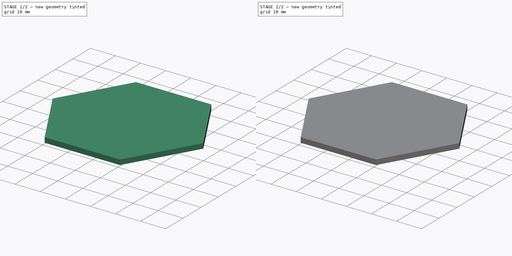
[diagram: build sequence overview — one tinted view per stage of 2, left to right]
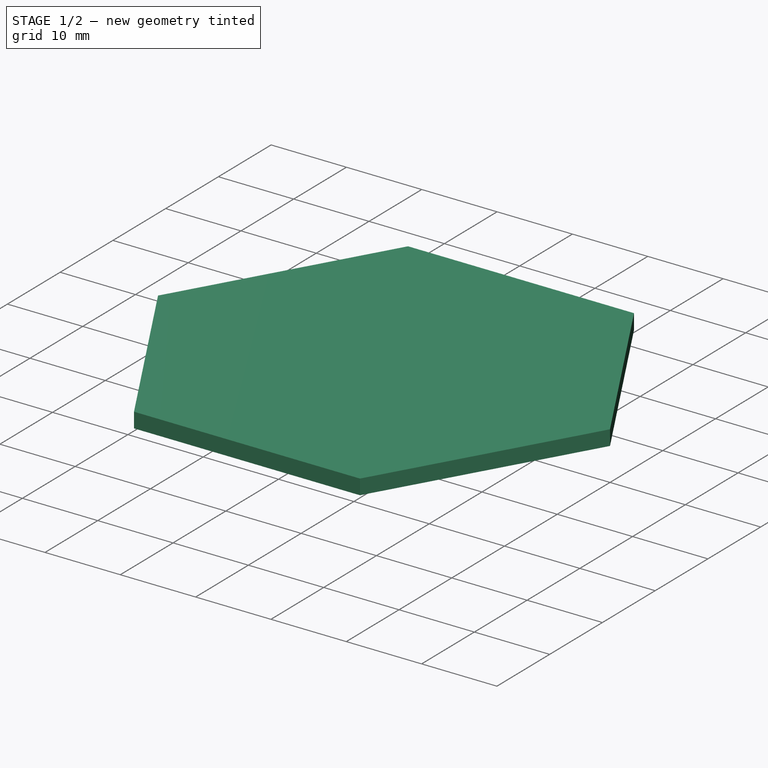
[diagram: stage 1 of 2 — iso view after this stage's code; geometry added in this stage tinted green]
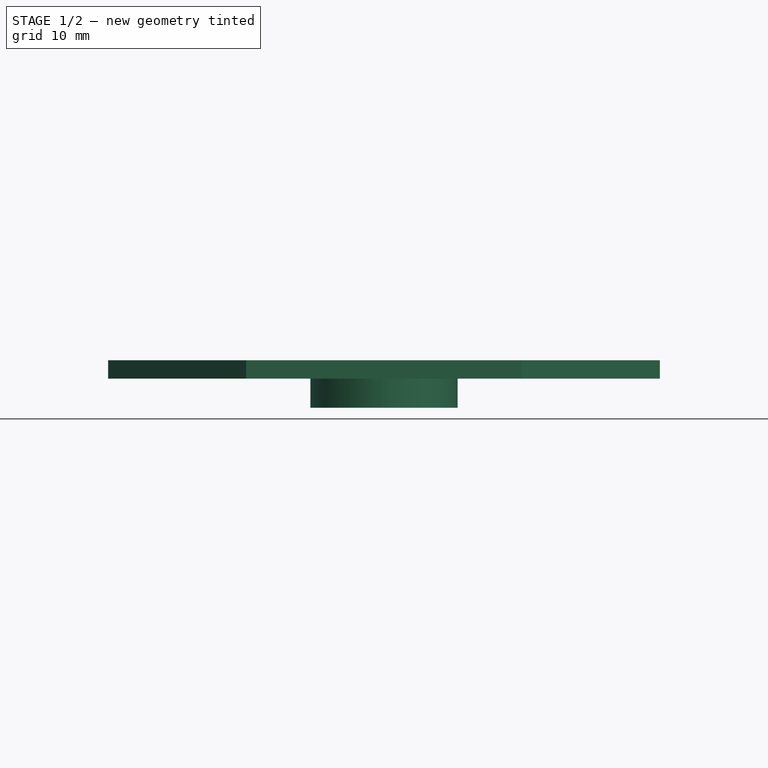
[diagram: stage 1 of 2 — front view after this stage's code; geometry added in this stage tinted green]
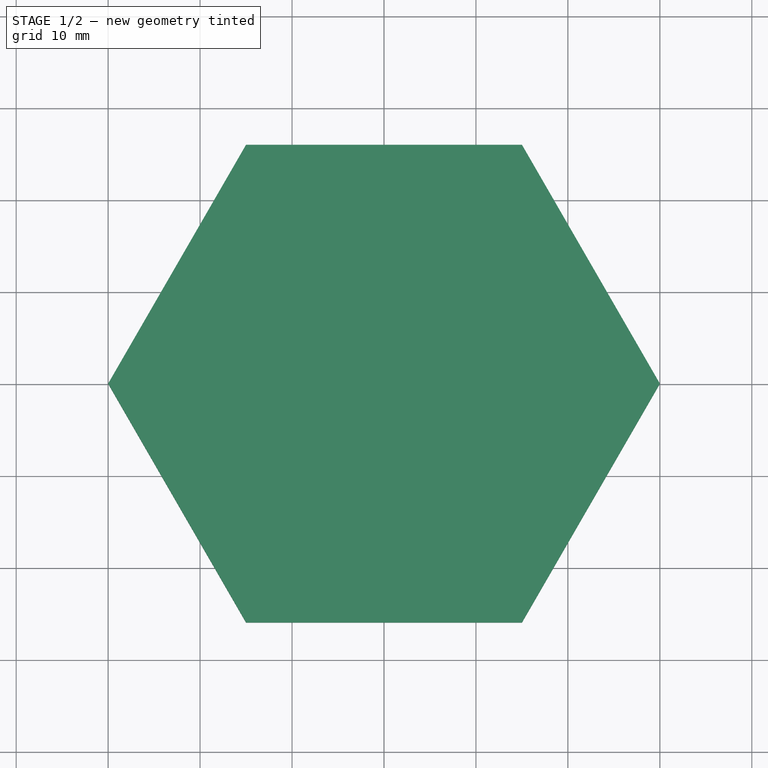
[diagram: stage 1 of 2 — top view after this stage's code; geometry added in this stage tinted green]
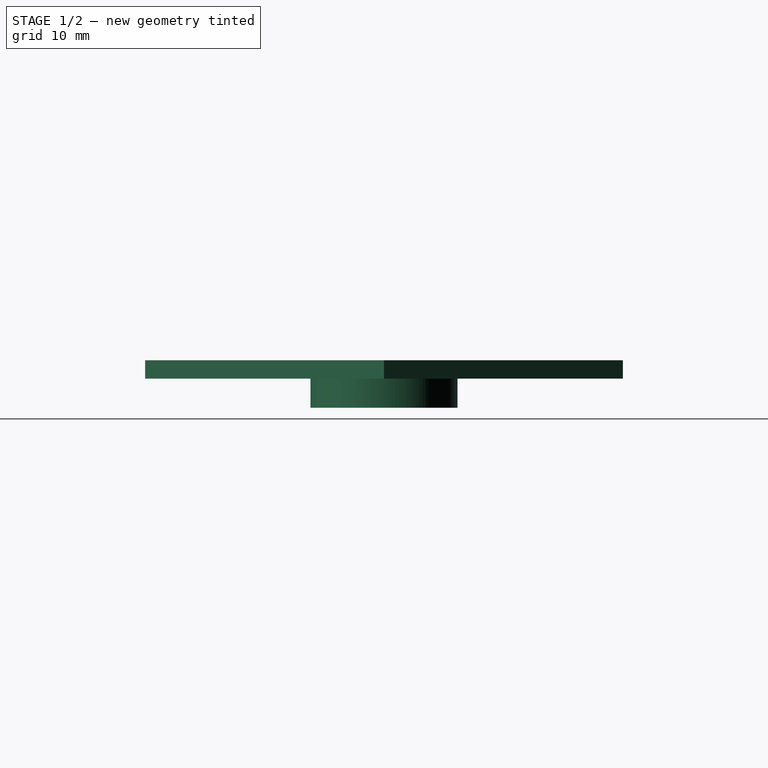
[diagram: stage 1 of 2 — right view after this stage's code; geometry added in this stage tinted green]
FCSTD DOCUMENT  (FreeCAD 0.15R4671 (Git))
Label: insert
License: All rights reserved
LicenseURL: http://en.wikipedia.org/wiki/All_rights_reserved
objects: Sketcher::SketchObject×3, PartDesign::Pad×3, PartDesign::Fillet×1
note: 10 computed .brp shape members not serialized (recipe doc carries the construction recipe); baked Part::Feature solids carry a one-line shape summary decoded from their .brp

FEATURE [Sketcher::SketchObject] Sketch
  Placement = pos=(0,0,0) rot=(1,0,0;3.14159rad)
  sketch-geometry (7):
    g0: LineSegment StartX=30 StartY=-6e-12 StartZ=0 EndX=15 EndY=25.9808 EndZ=0
    g1: LineSegment StartX=15 StartY=25.9808 StartZ=0 EndX=-15 EndY=25.9808 EndZ=0
    g2: LineSegment StartX=-15 StartY=25.9808 StartZ=0 EndX=-30 EndY=-2e-12 EndZ=0
    g3: LineSegment StartX=-30 StartY=-2e-12 StartZ=0 EndX=-15 EndY=-25.9808 EndZ=0
    g4: LineSegment StartX=-15 StartY=-25.9808 StartZ=0 EndX=15 EndY=-25.9808 EndZ=0
    g5: LineSegment StartX=15 StartY=-25.9808 StartZ=0 EndX=30 EndY=-6e-12 EndZ=0
    g6: Circle [constr] CenterX=0 CenterY=0 CenterZ=0 NormalX=0 NormalY=0 NormalZ=1 Radius=30
  constraints (17):
    c: Coincident(g0,g1)
    c: Coincident(g1,g2)
    c: Coincident(g2,g3)
    c: Coincident(g3,g4)
    c: Coincident(g4,g5)
    c: Coincident(g5,g0)
    c: Equal(g0, g1-g5) x5
    c: PointOnObject(g0,g6)
    c: PointOnObject(g1,g6)
    c: PointOnObject(g2,g6)
    c: PointOnObject(g3,g6)
    c: PointOnObject(g4,g6)
    c: PointOnObject(g5,g6)
    c: PointOnObject(g3,g-2)
    c: Horizontal(g4)
    c: Coincident(g6,g-1)
    c: Radius(g6) = 30
FEATURE [PartDesign::Pad] Pad
  Length = 2
  Length2 = 100
  Placement = pos=(0,0,0) rot=(1,0,0;3.14159rad)
  Sketch = -> Sketch
  Type = 0
FEATURE [Sketcher::SketchObject] Sketch001
  Placement = pos=(0,0,-2) rot=(1,0,0;3.14159rad)
  Support = -> Pad [Face8]
  sketch-geometry (2):
    g0: Circle CenterX=0 CenterY=0 CenterZ=0 NormalX=0 NormalY=0 NormalZ=1 Radius=5.08
    g1: Circle CenterX=0 CenterY=0 CenterZ=0 NormalX=0 NormalY=0 NormalZ=1 Radius=8
  constraints (4):
    c: Coincident(g0,g-1)
    c: Radius(g0) = 5.08
    c: Coincident(g1,g-1)
    c: Radius(g1) = 8
FEATURE [PartDesign::Pad] Pad001
  Length = 3.175
  Length2 = 100
  Placement = pos=(0,0,0) rot=(1,0,0;3.14159rad)
  Sketch = -> Sketch001
  Type = 0
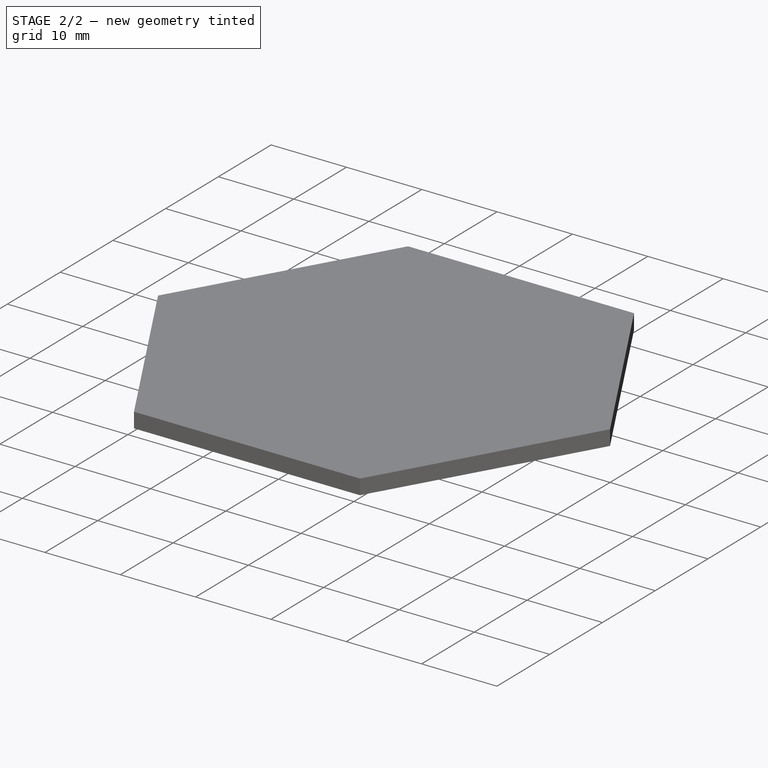
[diagram: stage 2 of 2 — iso view after this stage's code; geometry added in this stage tinted green]
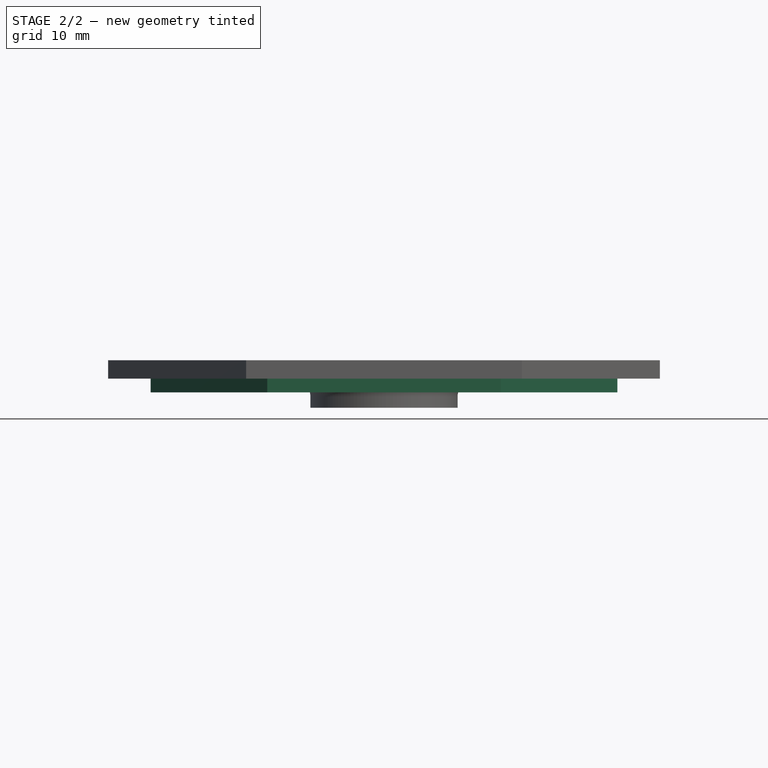
[diagram: stage 2 of 2 — front view after this stage's code; geometry added in this stage tinted green]
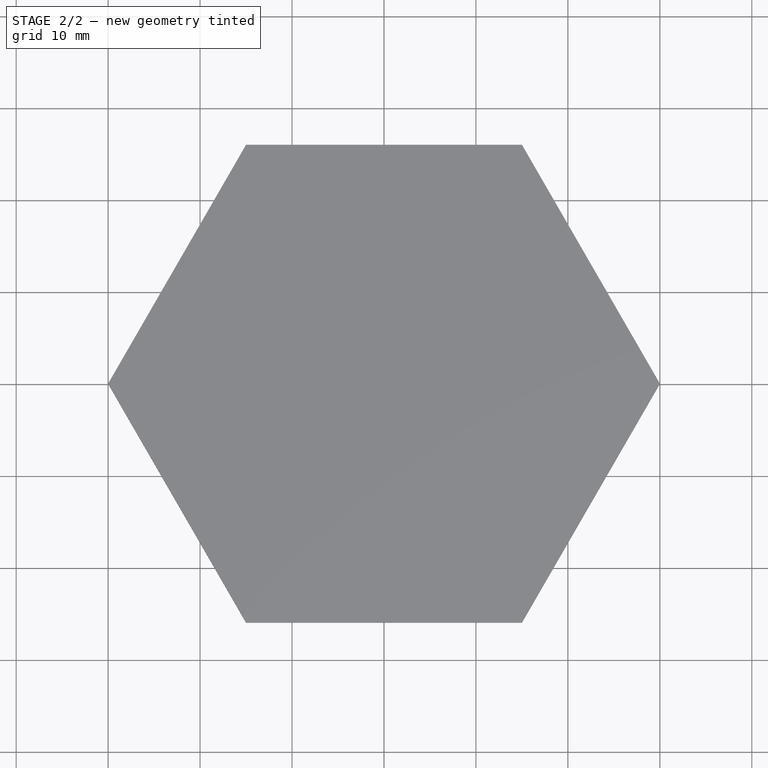
[diagram: stage 2 of 2 — top view after this stage's code; geometry added in this stage tinted green]
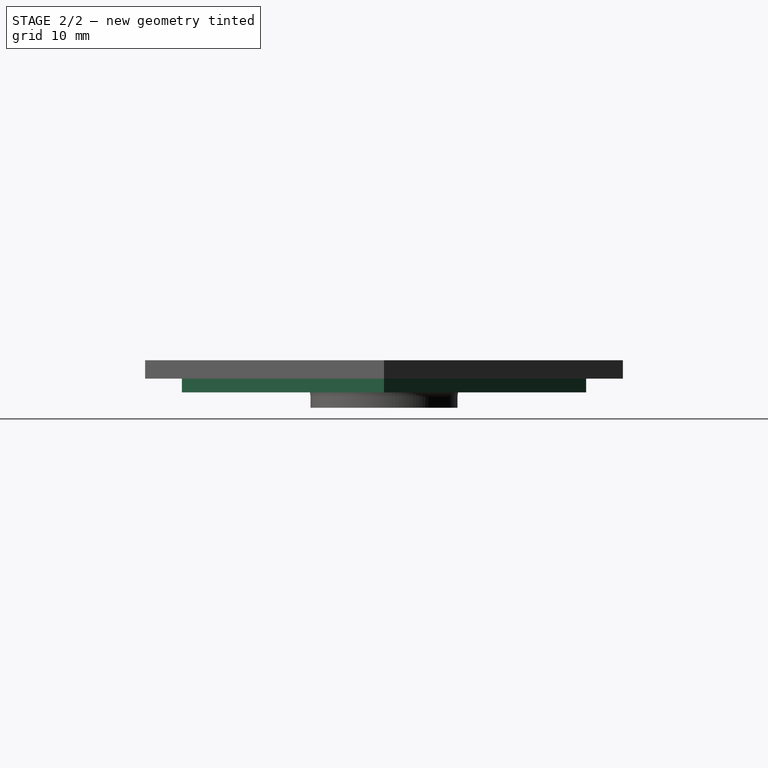
[diagram: stage 2 of 2 — right view after this stage's code; geometry added in this stage tinted green]
FEATURE [PartDesign::Fillet] Fillet
  Base = -> Pad001 [Edge17]
  Placement = pos=(0,0,0) rot=(1,0,0;3.14159rad)
  Radius = 2
FEATURE [Sketcher::SketchObject] Sketch002
  ExternalGeometry = -> [Fillet]
  Placement = pos=(0,0,-2) rot=(1,0,0;3.14159rad)
  Support = -> Fillet [Face1]
  sketch-geometry (16):
    g0: LineSegment StartX=12.6906 StartY=-21.9808 StartZ=0 EndX=25.3812 EndY=0 EndZ=0
    g1: LineSegment StartX=25.3812 StartY=0 StartZ=0 EndX=12.6906 EndY=21.9808 EndZ=0
    g2: LineSegment StartX=12.6906 StartY=21.9808 StartZ=0 EndX=-12.6906 EndY=21.9808 EndZ=0
    g3: LineSegment StartX=-12.6906 StartY=21.9808 StartZ=0 EndX=-25.3812 EndY=0 EndZ=0
    g4: LineSegment StartX=-25.3812 StartY=0 StartZ=0 EndX=-12.6906 EndY=-21.9808 EndZ=0
    g5: LineSegment StartX=-12.6906 StartY=-21.9808 StartZ=0 EndX=12.6906 EndY=-21.9808 EndZ=0
    g6: Circle [constr] CenterX=0 CenterY=0 CenterZ=0 NormalX=0 NormalY=0 NormalZ=1 Radius=25.3812
    g7: LineSegment [constr] StartX=25.3812 StartY=0 StartZ=0 EndX=28.8453 EndY=2 EndZ=0
    g8: LineSegment StartX=11.5359 StartY=-19.9808 StartZ=0 EndX=23.0718 EndY=0 EndZ=0
    g9: LineSegment StartX=23.0718 StartY=0 StartZ=0 EndX=11.5359 EndY=19.9808 EndZ=0
    g10: LineSegment StartX=11.5359 StartY=19.9808 StartZ=0 EndX=-11.5359 EndY=19.9808 EndZ=0
    g11: LineSegment StartX=-11.5359 StartY=19.9808 StartZ=0 EndX=-23.0718 EndY=0 EndZ=0
    g12: LineSegment StartX=-23.0718 StartY=0 StartZ=0 EndX=-11.5359 EndY=-19.9808 EndZ=0
    g13: LineSegment StartX=-11.5359 StartY=-19.9808 StartZ=0 EndX=11.5359 EndY=-19.9808 EndZ=0
    g14: Circle [constr] CenterX=0 CenterY=0 CenterZ=0 NormalX=0 NormalY=0 NormalZ=1 Radius=23.0718
    g15: LineSegment [constr] StartX=11.5359 StartY=19.9808 StartZ=0 EndX=13.2679 EndY=20.9808 EndZ=0
  constraints (39):
    c: Coincident(g0,g1)
    c: Coincident(g1,g2)
    c: Coincident(g2,g3)
    c: Coincident(g3,g4)
    c: Coincident(g4,g5)
    c: Coincident(g5,g0)
    c: Equal(g0, g1-g5) x5
    c: PointOnObject(g0,g6)
    c: PointOnObject(g1,g6)
    c: PointOnObject(g2,g6)
    c: PointOnObject(g3,g6)
    c: PointOnObject(g4,g6)
    c: PointOnObject(g5,g6)
    c: Coincident(g3,g-1)
    c: Horizontal(g5)
    c: Coincident(g6,g-1)
    c: Coincident(g7,g0)
    c: PointOnObject(g7,g-3)
    c: Perpendicular(g7,g-3)
    c: Distance(g7) = 4
    c: Coincident(g8,g9)
    c: Coincident(g9,g10)
    c: Coincident(g10,g11)
    c: Coincident(g11,g12)
    c: Coincident(g12,g13)
    c: Coincident(g13,g8)
    c: Equal(g8, g9-g13) x5
    c: PointOnObject(g8,g14)
    c: PointOnObject(g9,g14)
    c: PointOnObject(g10,g14)
    c: PointOnObject(g11,g14)
    c: PointOnObject(g12,g14)
    c: PointOnObject(g13,g14)
    c: Horizontal(g13)
    c: Coincident(g14,g-1)
    c: Coincident(g15,g9)
    c: PointOnObject(g15,g1)
    c: Perpendicular(g1,g15)
    c: Distance(g15) = 2
FEATURE [PartDesign::Pad] Pad002
  Length = 1.5
  Length2 = 100
  Placement = pos=(0,0,0) rot=(1,0,0;3.14159rad)
  Sketch = -> Sketch002
  Type = 0
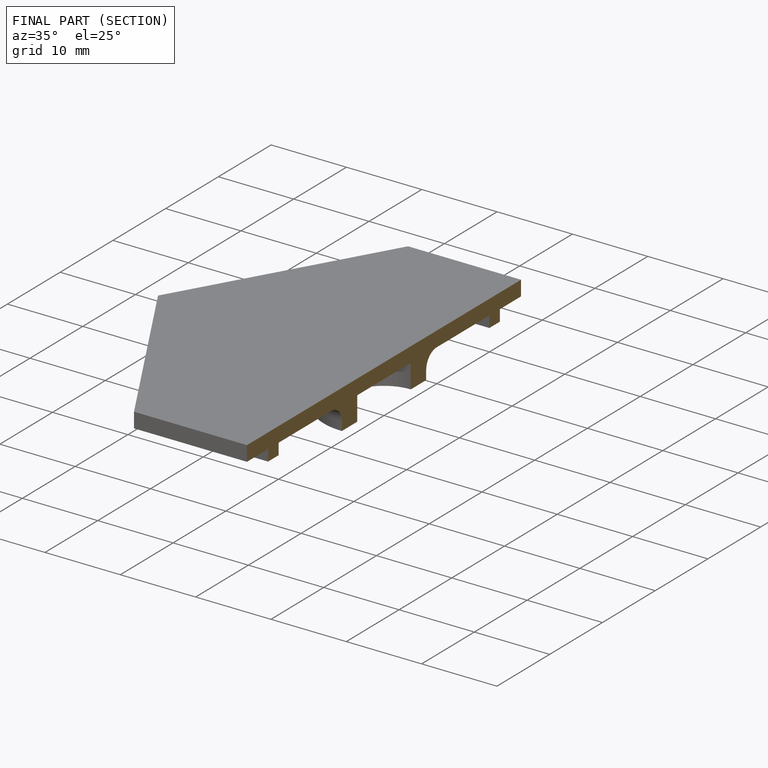
[diagram: finished part — half-section view (interior)]
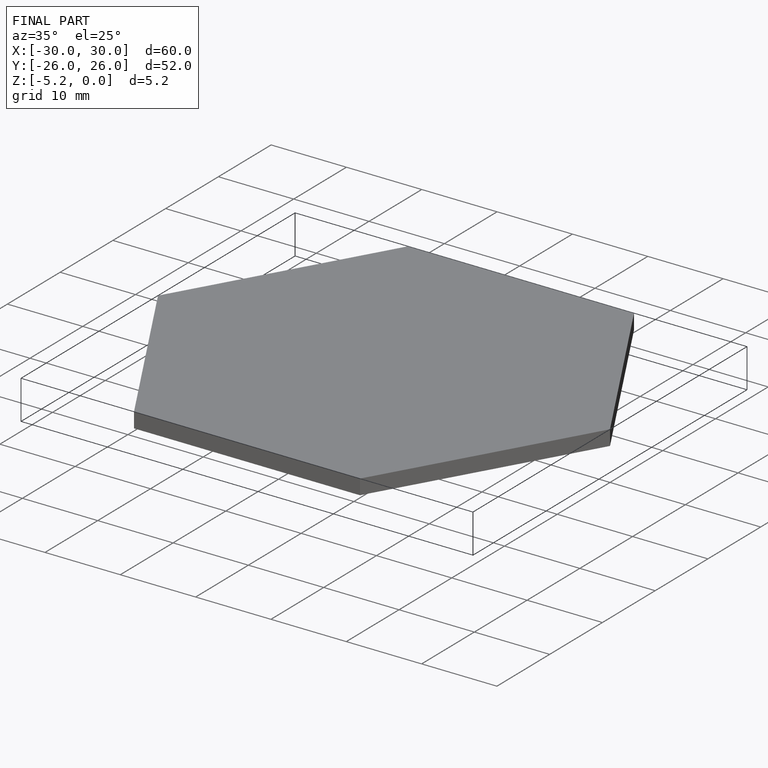
[diagram: finished part — iso view with bounding-box wireframe]
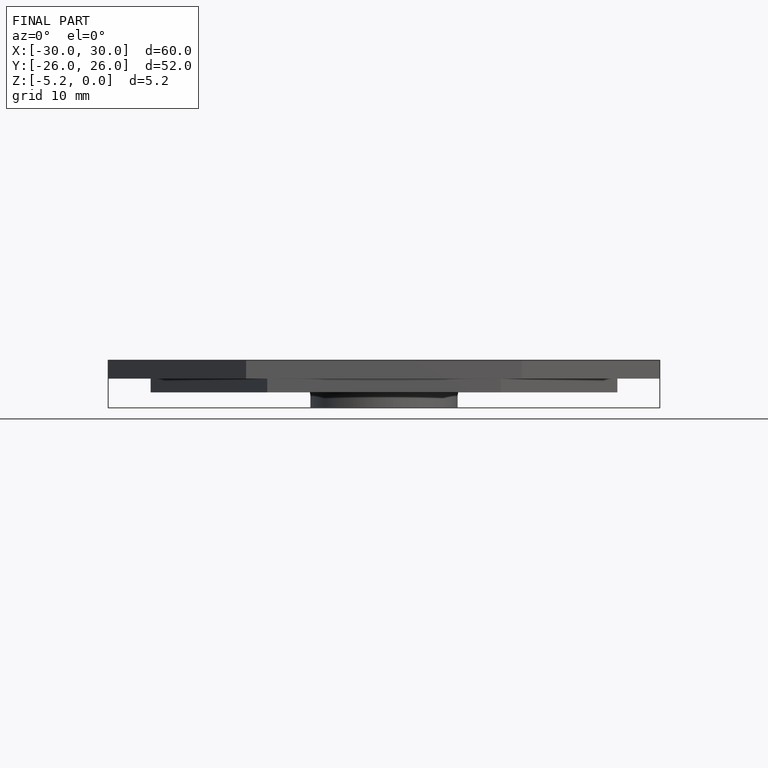
[diagram: finished part — front view with bounding-box wireframe]
